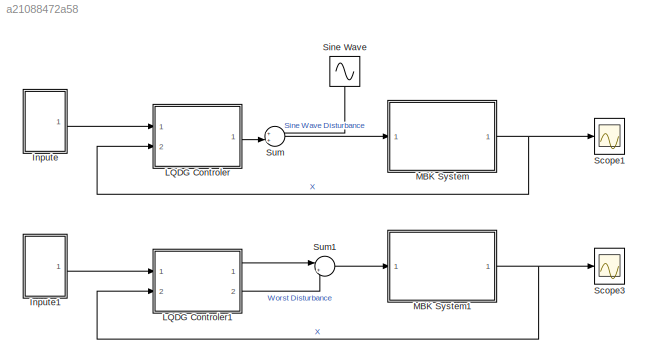
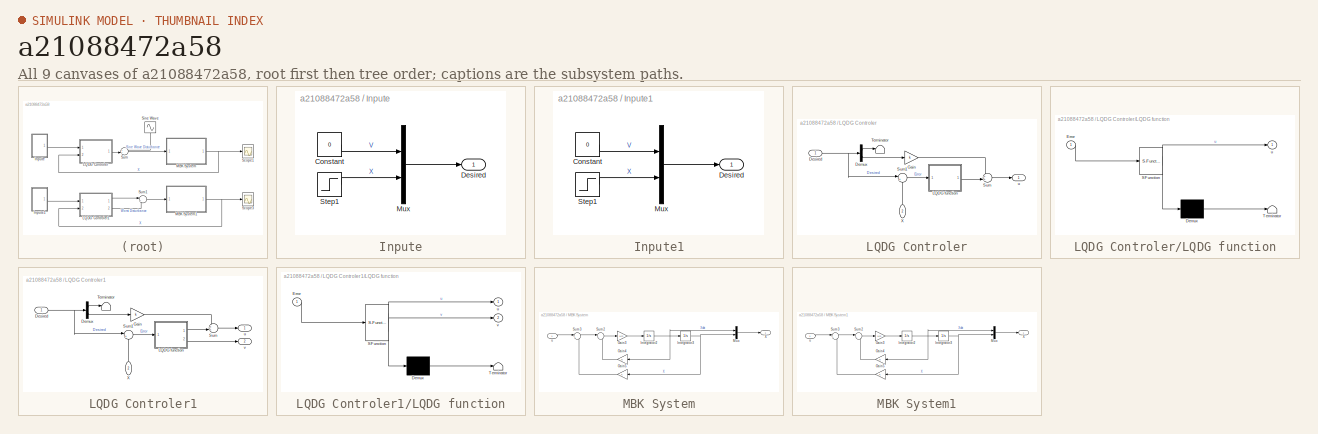
[diagram: thumbnail index - all 9 canvases of the model, root first then tree order]
MODEL slx_a21088472a58
KIND model
CONFIG AbsTol = auto
CONFIG EnableMultiTasking = off
CONFIG FixedStep = 0.01
CONFIG InitFcn = MBK
CONFIG MaxStep = auto
CONFIG MinStep = auto
CONFIG RelTol = 1e-3
CONFIG SampleTimeConstraint = Unconstrained
CONFIG Solver = ode4
CONFIG SolverName = ode4
CONFIG StartTime = 0.0
CONFIG StopTime = 50
BLOCK [SubSystem] Inpute
  Ports = [0, 1]
  RequestExecContextInheritance = off
BLOCK [Constant] Inpute/Constant
  Value = 0
BLOCK [Outport] Inpute/Desired
  IconDisplay = Port number
BLOCK [Mux] Inpute/Mux
  DisplayOption = bar
  Inputs = 2
  Ports = [2, 1]
BLOCK [Step] Inpute/Step1
  After = 6
  SampleTime = 0
BLOCK [SubSystem] Inpute1
  Ports = [0, 1]
  RequestExecContextInheritance = off
BLOCK [Constant] Inpute1/Constant
  Value = 0
BLOCK [Outport] Inpute1/Desired
  IconDisplay = Port number
BLOCK [Mux] Inpute1/Mux
  DisplayOption = bar
  Inputs = 2
  Ports = [2, 1]
BLOCK [Step] Inpute1/Step1
  After = 6
  SampleTime = 0
  Time = 0
BLOCK [SubSystem] LQDG Controler
  Ports = [2, 1]
  RequestExecContextInheritance = off
BLOCK [Demux] LQDG Controler/Demux
  DisplayOption = bar
  Outputs = 2
  Ports = [1, 2]
BLOCK [Inport] LQDG Controler/Desired
  IconDisplay = Port number
BLOCK [Gain] LQDG Controler/Gain
  Gain = k
  OutDataTypeStr = Inherit: Inherit via internal rule
  ParamDataTypeStr = Inherit: Inherit via internal rule
  SaturateOnIntegerOverflow = off
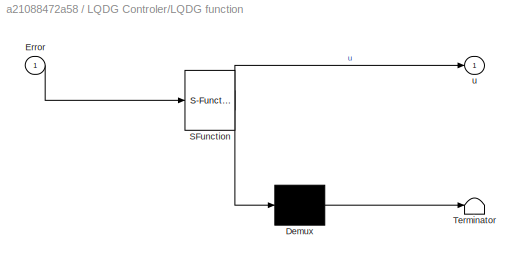
BLOCK [SubSystem] LQDG Controler/LQDG function
  ErrorFcn = Stateflow.Translate.translate
  PermitHierarchicalResolution = ExplicitOnly
  Ports = [1, 1]
  RequestExecContextInheritance = off
  SFBlockType = MATLAB Function
  TreatAsAtomicUnit = on
BLOCK [Demux] LQDG Controler/LQDG function/ Demux 
  Outputs = 1
  Ports = [1, 1]
BLOCK [S-Function] LQDG Controler/LQDG function/ SFunction 
  EnableBusSupport = on
  FunctionName = sf_sfun
  PortCounts = [1 2]
  Ports = [1, 2]
  SFcnIsStateOwnerBlock = off
  SFunctionDeploymentMode = off
  Tag = Stateflow S-Function MBKwithLQDG 3
BLOCK [Terminator] LQDG Controler/LQDG function/ Terminator 
BLOCK [Inport] LQDG Controler/LQDG function/Error
  IconDisplay = Port number
BLOCK [Outport] LQDG Controler/LQDG function/u
  IconDisplay = Port number
BLOCK [Sum] LQDG Controler/Sum
  IconShape = round
  InputSameDT = off
  Inputs = ++|
  OutDataTypeStr = Inherit: Inherit via internal rule
  Ports = [2, 1]
  SaturateOnIntegerOverflow = off
BLOCK [Sum] LQDG Controler/Sum1
  IconShape = round
  InputSameDT = off
  Inputs = |+-
  OutDataTypeStr = Inherit: Inherit via internal rule
  Ports = [2, 1]
  SaturateOnIntegerOverflow = off
BLOCK [Terminator] LQDG Controler/Terminator
BLOCK [Inport] LQDG Controler/X
  IconDisplay = Port number
  Port = 2
BLOCK [Outport] LQDG Controler/u
  IconDisplay = Port number
BLOCK [SubSystem] LQDG Controler1
  Ports = [2, 2]
  RequestExecContextInheritance = off
BLOCK [Demux] LQDG Controler1/Demux
  DisplayOption = bar
  Outputs = 2
  Ports = [1, 2]
BLOCK [Inport] LQDG Controler1/Desired
  IconDisplay = Port number
BLOCK [Gain] LQDG Controler1/Gain
  Gain = k
  OutDataTypeStr = Inherit: Inherit via internal rule
  ParamDataTypeStr = Inherit: Inherit via internal rule
  SaturateOnIntegerOverflow = off
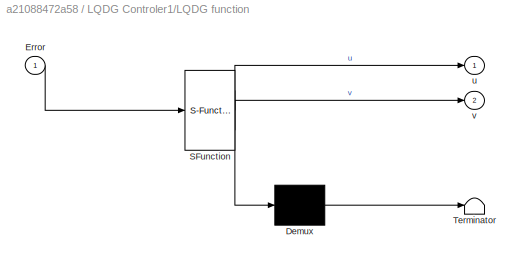
BLOCK [SubSystem] LQDG Controler1/LQDG function
  ErrorFcn = Stateflow.Translate.translate
  PermitHierarchicalResolution = ExplicitOnly
  Ports = [1, 2]
  RequestExecContextInheritance = off
  SFBlockType = MATLAB Function
  TreatAsAtomicUnit = on
BLOCK [Demux] LQDG Controler1/LQDG function/ Demux 
  Outputs = 1
  Ports = [1, 1]
BLOCK [S-Function] LQDG Controler1/LQDG function/ SFunction 
  EnableBusSupport = on
  FunctionName = sf_sfun
  PortCounts = [1 3]
  Ports = [1, 3]
  SFcnIsStateOwnerBlock = off
  SFunctionDeploymentMode = off
  Tag = Stateflow S-Function MBKwithLQDG 1
BLOCK [Terminator] LQDG Controler1/LQDG function/ Terminator 
BLOCK [Inport] LQDG Controler1/LQDG function/Error
  IconDisplay = Port number
BLOCK [Outport] LQDG Controler1/LQDG function/u
  IconDisplay = Port number
BLOCK [Outport] LQDG Controler1/LQDG function/v
  IconDisplay = Port number
  Port = 2
BLOCK [Sum] LQDG Controler1/Sum
  IconShape = round
  InputSameDT = off
  Inputs = ++|
  OutDataTypeStr = Inherit: Inherit via internal rule
  Ports = [2, 1]
  SaturateOnIntegerOverflow = off
BLOCK [Sum] LQDG Controler1/Sum1
  IconShape = round
  InputSameDT = off
  Inputs = |+-
  OutDataTypeStr = Inherit: Inherit via internal rule
  Ports = [2, 1]
  SaturateOnIntegerOverflow = off
BLOCK [Terminator] LQDG Controler1/Terminator
BLOCK [Inport] LQDG Controler1/X
  IconDisplay = Port number
  Port = 2
BLOCK [Outport] LQDG Controler1/u
  IconDisplay = Port number
BLOCK [Outport] LQDG Controler1/v
  IconDisplay = Port number
  Port = 2
BLOCK [SubSystem] MBK System
  Ports = [1, 1]
  RequestExecContextInheritance = off
BLOCK [Gain] MBK System/Gain3
  Gain = 1/m
  OutDataTypeStr = Inherit: Inherit via internal rule
  ParamDataTypeStr = Inherit: Inherit via internal rule
  SaturateOnIntegerOverflow = off
BLOCK [Gain] MBK System/Gain4
  Gain = b
  OutDataTypeStr = Inherit: Inherit via internal rule
  ParamDataTypeStr = Inherit: Inherit via internal rule
  SaturateOnIntegerOverflow = off
BLOCK [Gain] MBK System/Gain5
  Gain = k
  OutDataTypeStr = Inherit: Inherit via internal rule
  ParamDataTypeStr = Inherit: Inherit via internal rule
  SaturateOnIntegerOverflow = off
BLOCK [Integrator] MBK System/Integrator2
  Ports = [1, 1]
BLOCK [Integrator] MBK System/Integrator3
  InitialCondition = 3
  Ports = [1, 1]
BLOCK [Mux] MBK System/Mux
  DisplayOption = bar
  Inputs = 2
  Ports = [2, 1]
BLOCK [Sum] MBK System/Sum2
  IconShape = round
  InputSameDT = off
  Inputs = |+-
  OutDataTypeStr = Inherit: Inherit via internal rule
  Ports = [2, 1]
  SaturateOnIntegerOverflow = off
BLOCK [Sum] MBK System/Sum3
  IconShape = round
  InputSameDT = off
  Inputs = |+-
  OutDataTypeStr = Inherit: Inherit via internal rule
  Ports = [2, 1]
  SaturateOnIntegerOverflow = off
BLOCK [Outport] MBK System/X
  IconDisplay = Port number
BLOCK [Inport] MBK System/u
  IconDisplay = Port number
BLOCK [SubSystem] MBK System1
  Ports = [1, 1]
  RequestExecContextInheritance = off
BLOCK [Gain] MBK System1/Gain3
  Gain = 1/m
  OutDataTypeStr = Inherit: Inherit via internal rule
  ParamDataTypeStr = Inherit: Inherit via internal rule
  SaturateOnIntegerOverflow = off
BLOCK [Gain] MBK System1/Gain4
  Gain = b
  OutDataTypeStr = Inherit: Inherit via internal rule
  ParamDataTypeStr = Inherit: Inherit via internal rule
  SaturateOnIntegerOverflow = off
BLOCK [Gain] MBK System1/Gain5
  Gain = k
  OutDataTypeStr = Inherit: Inherit via internal rule
  ParamDataTypeStr = Inherit: Inherit via internal rule
  SaturateOnIntegerOverflow = off
BLOCK [Integrator] MBK System1/Integrator2
  Ports = [1, 1]
BLOCK [Integrator] MBK System1/Integrator3
  InitialCondition = 3
  Ports = [1, 1]
BLOCK [Mux] MBK System1/Mux
  DisplayOption = bar
  Inputs = 2
  Ports = [2, 1]
BLOCK [Sum] MBK System1/Sum2
  IconShape = round
  InputSameDT = off
  Inputs = |+-
  OutDataTypeStr = Inherit: Inherit via internal rule
  Ports = [2, 1]
  SaturateOnIntegerOverflow = off
BLOCK [Sum] MBK System1/Sum3
  IconShape = round
  InputSameDT = off
  Inputs = |+-
  OutDataTypeStr = Inherit: Inherit via internal rule
  Ports = [2, 1]
  SaturateOnIntegerOverflow = off
BLOCK [Outport] MBK System1/X
  IconDisplay = Port number
BLOCK [Inport] MBK System1/u
  IconDisplay = Port number
BLOCK [Scope] Scope1
  Floating = off
  NumInputPorts = 1
  Ports = [1]
  ScopeSpecificationString = Simulink.scopes.TimeScopeBlockCfg('CurrentConfiguration', extmgr.ConfigurationSet(extmgr.Configuration('Core','General UI',true),extmgr.Configuration('Core','Source UI',true),extmgr.Configuration('Sources','WiredSimulink',true),extmgr.Configuration('Visuals','Time Domain',true,'SerializedDisplays',{struct('MinYLimReal','-1.57825','MaxYLimReal','8.79936','YLabelReal','','MinYLimMag','0.00000','MaxY...<+1434ch>
BLOCK [Scope] Scope3
  Floating = off
  NumInputPorts = 1
  Ports = [1]
  ScopeSpecificationString = Simulink.scopes.TimeScopeBlockCfg('CurrentConfiguration', extmgr.ConfigurationSet(extmgr.Configuration('Core','General UI',true),extmgr.Configuration('Core','Source UI',true),extmgr.Configuration('Sources','WiredSimulink',true,'DataLoggingVariableName','ScopeData1'),extmgr.Configuration('Visuals','Time Domain',true,'SerializedDisplays',{struct('MinYLimReal','-2.36102','MaxYLimReal','9.07939','YLab...<+1473ch>
BLOCK [Sin] Sine Wave
  Ports = [0, 1]
  SampleTime = 0
BLOCK [Sum] Sum
  IconShape = round
  InputSameDT = off
  Inputs = ++|
  OutDataTypeStr = Inherit: Inherit via internal rule
  Ports = [2, 1]
  SaturateOnIntegerOverflow = off
BLOCK [Sum] Sum1
  IconShape = round
  InputSameDT = off
  Inputs = |++
  OutDataTypeStr = Inherit: Inherit via internal rule
  Ports = [2, 1]
  SaturateOnIntegerOverflow = off
LINE Inpute/Constant:1 -> Inpute/Mux:1
LINE Inpute/Mux:1 -> Inpute/Desired:1
LINE Inpute/Step1:1 -> Inpute/Mux:2
LINE Inpute1/Constant:1 -> Inpute1/Mux:1
LINE Inpute1/Mux:1 -> Inpute1/Desired:1
LINE Inpute1/Step1:1 -> Inpute1/Mux:2
LINE Inpute1:1 -> LQDG Controler1:1
LINE Inpute:1 -> LQDG Controler:1
LINE LQDG Controler/Demux:1 -> LQDG Controler/Terminator:1
LINE LQDG Controler/Demux:2 -> LQDG Controler/Gain:1
NET LQDG Controler/Desired:1 -> LQDG Controler/Demux:1, LQDG Controler/Sum1:1
LINE LQDG Controler/Gain:1 -> LQDG Controler/Sum:1
LINE LQDG Controler/LQDG function:1 -> LQDG Controler/Sum:2
LINE LQDG Controler/Sum1:1 -> LQDG Controler/LQDG function:1
LINE LQDG Controler/Sum:1 -> LQDG Controler/u:1
LINE LQDG Controler/X:1 -> LQDG Controler/Sum1:2
LINE LQDG Controler1/Demux:1 -> LQDG Controler1/Terminator:1
LINE LQDG Controler1/Demux:2 -> LQDG Controler1/Gain:1
NET LQDG Controler1/Desired:1 -> LQDG Controler1/Demux:1, LQDG Controler1/Sum1:1
LINE LQDG Controler1/Gain:1 -> LQDG Controler1/Sum:1
LINE LQDG Controler1/LQDG function:1 -> LQDG Controler1/Sum:2
LINE LQDG Controler1/LQDG function:2 -> LQDG Controler1/v:1
LINE LQDG Controler1/Sum1:1 -> LQDG Controler1/LQDG function:1
LINE LQDG Controler1/Sum:1 -> LQDG Controler1/u:1
LINE LQDG Controler1/X:1 -> LQDG Controler1/Sum1:2
LINE LQDG Controler1:1 -> Sum1:1
LINE LQDG Controler1:2 -> Sum1:2
LINE LQDG Controler:1 -> Sum:2
LINE MBK System/Gain3:1 -> MBK System/Integrator2:1
LINE MBK System/Gain4:1 -> MBK System/Sum2:2
LINE MBK System/Gain5:1 -> MBK System/Sum3:2
NET MBK System/Integrator2:1 -> MBK System/Gain4:1, MBK System/Integrator3:1, MBK System/Mux:1
NET MBK System/Integrator3:1 -> MBK System/Gain5:1, MBK System/Mux:2
LINE MBK System/Mux:1 -> MBK System/X:1
LINE MBK System/Sum2:1 -> MBK System/Gain3:1
LINE MBK System/Sum3:1 -> MBK System/Sum2:1
LINE MBK System/u:1 -> MBK System/Sum3:1
LINE MBK System1/Gain3:1 -> MBK System1/Integrator2:1
LINE MBK System1/Gain4:1 -> MBK System1/Sum2:2
LINE MBK System1/Gain5:1 -> MBK System1/Sum3:2
NET MBK System1/Integrator2:1 -> MBK System1/Gain4:1, MBK System1/Integrator3:1, MBK System1/Mux:1
NET MBK System1/Integrator3:1 -> MBK System1/Gain5:1, MBK System1/Mux:2
LINE MBK System1/Mux:1 -> MBK System1/X:1
LINE MBK System1/Sum2:1 -> MBK System1/Gain3:1
LINE MBK System1/Sum3:1 -> MBK System1/Sum2:1
LINE MBK System1/u:1 -> MBK System1/Sum3:1
NET MBK System1:1 -> LQDG Controler1:2, Scope3:1
NET MBK System:1 -> LQDG Controler:2, Scope1:1
LINE Sine Wave:1 -> Sum:1
LINE Sum1:1 -> MBK System1:1
LINE Sum:1 -> MBK System:1
note: NET lines group one-source signal fan-out (src -> all destinations, sorted); 1:1 wires keep LINE
CHART LQDG Controler1/LQDG function states=1 transitions=1
  STATE_LABEL 'eML_blk_kernel()'
  STATE_LABEL "SCRIPT:\nfunction [u,v] = LQDG(Error)\n%% System Description\n% Mass\nm = 10;\n% Viscous Friction Coefficient \nb = 2;\n% Spring Constant\nk = 5;\n%% State Space\n% x_dot = Ax + Bu - Dv (DV: Disturbance)\n%{\nA = [ 0    1;\n    -k/m -b/m];\nC = [0 1];\nD = B;\n%}\nB = [ 0 ;\n     1/m];\n% Weight Matrix\nR = 1;\nQ = [5 0;\n     0   1] ;\nGamma = 0.8;\n%% Riccati Equation\n%P * A + A' * P - P * B * R^-1 * B' * P + P * D * G...<+727ch>"
CHART LQDG Controler/LQDG function states=1 transitions=1
  STATE_LABEL 'eML_blk_kernel()'
  STATE_LABEL "SCRIPT:\nfunction u = LQDG(Error)\n%% System Description\n% Mass\nm = 10;\n% Viscous Friction Coefficient \nb = 2;\n% Spring Constant\nk = 5;\n%% State Space\n% x_dot = Ax + Bu - Dv (DV: Disturbance)\n%{\nA = [ 0    1;\n    -k/m -b/m];\nC = [0 1];\nD = B;\n%}\nB = [ 0 ;\n     1/m];\n% Weight Matrix\nR = 1;\nQ = [5 0;\n     0   1] ;\nGamma = 0.8;\n%% Riccati Equation\n%P * A + A' * P - P * B * R^-1 * B' * P + P * D * Gamma...<+693ch>"
